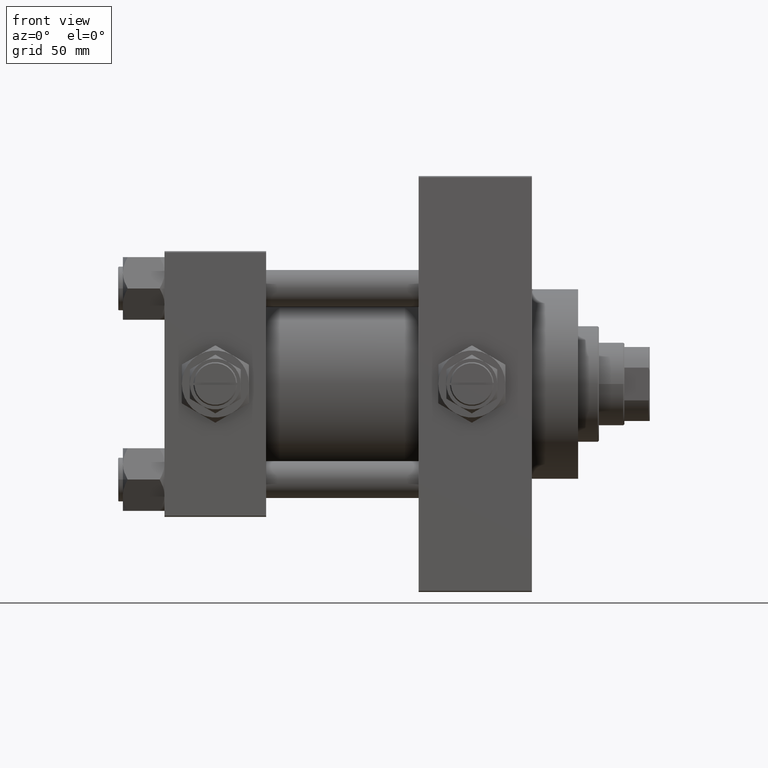
[diagram: clean part render]
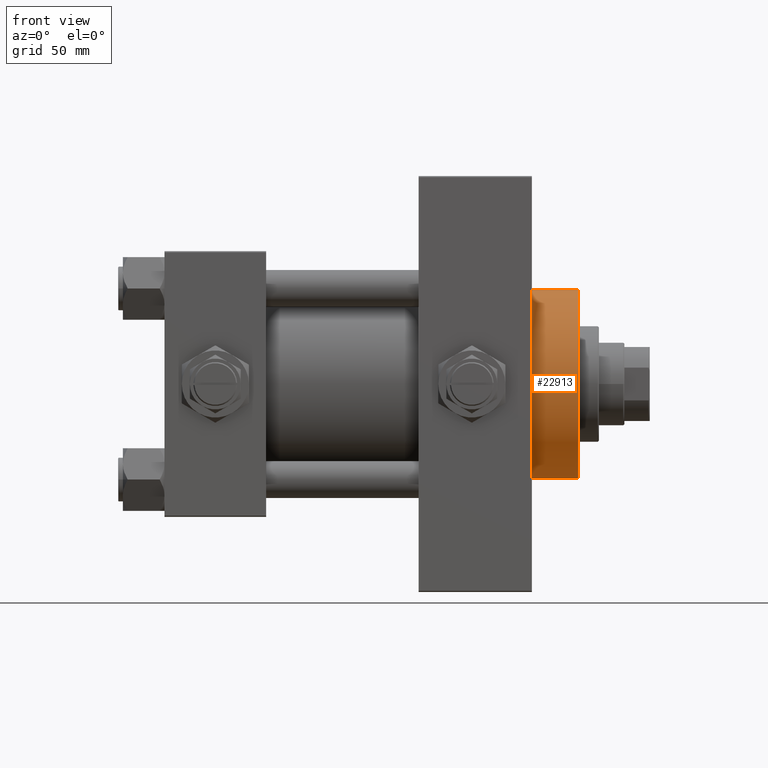
[diagram: same view with one face highlighted and labeled with its STEP entity id]
A machine part, front view. The second image highlights one B-rep face of the part: STEP entity #22913.
In plain terms, the highlighted cylindrical surface (partial cylindrical patch) has radius 41 mm, axis along (-1, -0, -0).
Its self-contained STEP definition (entity closure, byte-faithful):
#1391 = CARTESIAN_POINT ( 'NONE',  ( 179.0000000000000000, 5.021051876504148963E-15, -41.00000000000000000 ) ) ;
#1976 = DIRECTION ( 'NONE',  ( 0.000000000000000000, 0.000000000000000000, -1.000000000000000000 ) ) ;
#2363 = LINE ( 'NONE', #33351, #46023 ) ;
#3001 = CARTESIAN_POINT ( 'NONE',  ( 159.0000000000000000, 0.000000000000000000, 41.00000000000000000 ) ) ;
#4352 = VERTEX_POINT ( 'NONE', #3001 ) ;
#5507 = CARTESIAN_POINT ( 'NONE',  ( 179.0000000000000000, 0.000000000000000000, 0.000000000000000000 ) ) ;
#5658 = VERTEX_POINT ( 'NONE', #1391 ) ;
#6464 = LINE ( 'NONE', #21315, #14866 ) ;
#6517 = DIRECTION ( 'NONE',  ( 0.000000000000000000, 0.000000000000000000, 1.000000000000000000 ) ) ;
#12055 = ORIENTED_EDGE ( 'NONE', *, *, #18151, .T. ) ;
#13553 = ORIENTED_EDGE ( 'NONE', *, *, #28638, .F. ) ;
#13818 = FACE_OUTER_BOUND ( 'NONE', #33574, .T. ) ;
#14504 = AXIS2_PLACEMENT_3D ( 'NONE', #43507, #23902, #39260 ) ;
#14866 = VECTOR ( 'NONE', #44209, 1000.000000000000000 ) ;
#15824 = CARTESIAN_POINT ( 'NONE',  ( 159.0000000000000000, 5.021051876504148963E-15, -41.00000000000000000 ) ) ;
#18151 = EDGE_CURVE ( 'NONE', #4352, #20875, #37077, .T. ) ;
#20011 = ORIENTED_EDGE ( 'NONE', *, *, #24447, .T. ) ;
#20875 = VERTEX_POINT ( 'NONE', #15824 ) ;
#21315 = CARTESIAN_POINT ( 'NONE',  ( 179.0000000000000000, 5.021051876504148963E-15, -41.00000000000000000 ) ) ;
#21762 = DIRECTION ( 'NONE',  ( -1.000000000000000000, -0.000000000000000000, -0.000000000000000000 ) ) ;
#22687 = AXIS2_PLACEMENT_3D ( 'NONE', #41256, #45013, #6517 ) ;
#22913 = ADVANCED_FACE ( 'NONE', ( #13818 ), #44266, .T. ) ;
#23902 = DIRECTION ( 'NONE',  ( 1.000000000000000000, 0.000000000000000000, 0.000000000000000000 ) ) ;
#24131 = ORIENTED_EDGE ( 'NONE', *, *, #38565, .F. ) ;
#24447 = EDGE_CURVE ( 'NONE', #46589, #4352, #2363, .T. ) ;
#28638 = EDGE_CURVE ( 'NONE', #5658, #20875, #6464, .T. ) ;
#33351 = CARTESIAN_POINT ( 'NONE',  ( 179.0000000000000000, 0.000000000000000000, 41.00000000000000000 ) ) ;
#33574 = EDGE_LOOP ( 'NONE', ( #13553, #24131, #20011, #12055 ) ) ;
#37077 = CIRCLE ( 'NONE', #14504, 41.00000000000000000 ) ;
#37719 = CARTESIAN_POINT ( 'NONE',  ( 179.0000000000000000, 0.000000000000000000, 41.00000000000000000 ) ) ;
#38217 = AXIS2_PLACEMENT_3D ( 'NONE', #5507, #40748, #1976 ) ;
#38565 = EDGE_CURVE ( 'NONE', #46589, #5658, #43811, .T. ) ;
#39260 = DIRECTION ( 'NONE',  ( 0.000000000000000000, 0.000000000000000000, -1.000000000000000000 ) ) ;
#40748 = DIRECTION ( 'NONE',  ( 1.000000000000000000, 0.000000000000000000, 0.000000000000000000 ) ) ;
#41256 = CARTESIAN_POINT ( 'NONE',  ( 179.0000000000000000, 0.000000000000000000, 0.000000000000000000 ) ) ;
#43507 = CARTESIAN_POINT ( 'NONE',  ( 159.0000000000000000, 0.000000000000000000, 0.000000000000000000 ) ) ;
#43811 = CIRCLE ( 'NONE', #38217, 41.00000000000000000 ) ;
#44209 = DIRECTION ( 'NONE',  ( -1.000000000000000000, -0.000000000000000000, -0.000000000000000000 ) ) ;
#44266 = CYLINDRICAL_SURFACE ( 'NONE', #22687, 41.00000000000000000 ) ;
#45013 = DIRECTION ( 'NONE',  ( -1.000000000000000000, -0.000000000000000000, -0.000000000000000000 ) ) ;
#46023 = VECTOR ( 'NONE', #21762, 1000.000000000000000 ) ;
#46589 = VERTEX_POINT ( 'NONE', #37719 ) ;